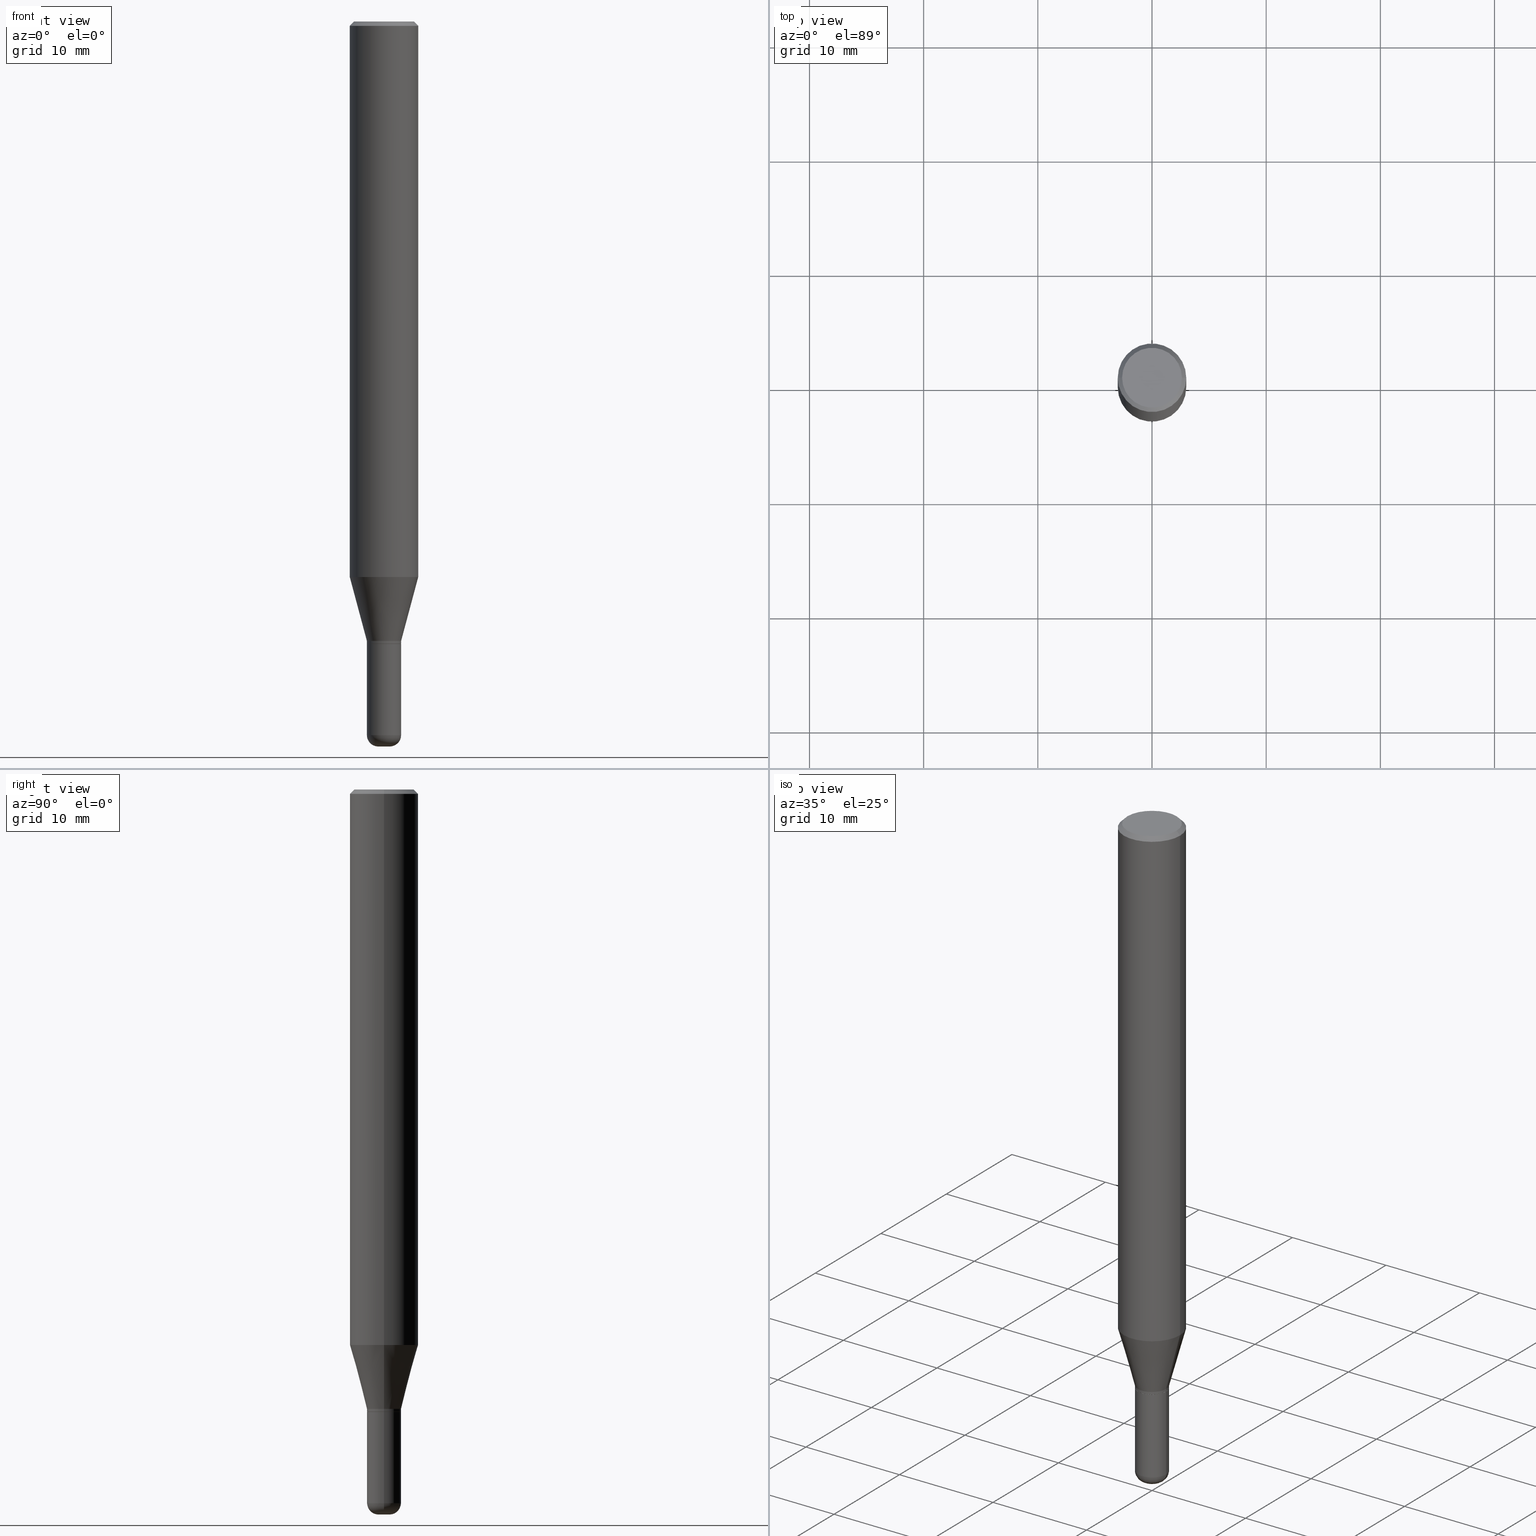
[diagram: canonical four-view strip — front | top / right | iso, engineering-drawing reading convention]
A machine part, canonical four-view strip (front | top / right | iso — engineering-drawing reading convention). The complete STEP part file that produces these views, byte-faithful:
ISO-10303-21;
HEADER;
FILE_DESCRIPTION (( 'STEP AP203' ),
    '1' );
FILE_NAME ('05365.STEP',
    '2024-02-29T19:38:31',
    ( '' ),
    ( '' ),
    'SwSTEP 2.0',
    'SolidWorks 2023',
    '' );
FILE_SCHEMA (( 'CONFIG_CONTROL_DESIGN' ));
ENDSEC;

DATA;
#1 = APPROVAL_STATUS ( 'not_yet_approved' ) ;
#2 = EDGE_LOOP ( 'NONE', ( #488, #219 ) ) ;
#3 = ADVANCED_FACE ( 'NONE', ( #178 ), #68, .F. ) ;
#4 = DIRECTION ( 'NONE',  ( 1.000000000000000000, -6.982962677686280910E-15, 0.000000000000000000 ) ) ;
#5 = AXIS2_PLACEMENT_3D ( 'NONE', #480, #48, #4 ) ;
#6 = ORIENTED_EDGE ( 'NONE', *, *, #490, .T. ) ;
#7 = COORDINATED_UNIVERSAL_TIME_OFFSET ( 5, 0, .BEHIND. ) ;
#8 = DATE_TIME_ROLE ( 'creation_date' ) ;
#9 = DIRECTION ( 'NONE',  ( 1.000000000000000000, -6.982962677686265922E-15, 4.876176775795935232E-29 ) ) ;
#10 = APPROVAL_DATE_TIME ( #320, #200 ) ;
#11 = AXIS2_PLACEMENT_3D ( 'NONE', #71, #336, #231 ) ;
#12 = DIRECTION ( 'NONE',  ( -2.445468806185136597E-29, 3.491481338843145583E-15, 1.000000000000000000 ) ) ;
#13 = CARTESIAN_POINT ( 'NONE',  ( 0.1180999999999999966, -8.246878922347480654E-16, 5.758764772215000440E-30 ) ) ;
#14 = DIRECTION ( 'NONE',  ( -2.438088387897960049E-29, 3.491481338843145188E-15, 1.000000000000000000 ) ) ;
#15 = ORIENTED_EDGE ( 'NONE', *, *, #168, .F. ) ;
#16 = EDGE_CURVE ( 'NONE', #373, #432, #75, .T. ) ;
#17 = EDGE_CURVE ( 'NONE', #500, #373, #124, .T. ) ;
#18 = DIRECTION ( 'NONE',  ( -2.445468806185136597E-29, 3.491481338843145583E-15, 1.000000000000000000 ) ) ;
#19 = CARTESIAN_POINT ( 'NONE',  ( -0.05905000000000002608, -7.037181209900967462E-15, -2.135699999999999932 ) ) ;
#20 = DIRECTION ( 'NONE',  ( 1.000000000000000000, -6.982962677686280910E-15, 4.883557194083117946E-29 ) ) ;
#21 = EDGE_LOOP ( 'NONE', ( #316, #133, #33, #72 ) ) ;
#22 = DIRECTION ( 'NONE',  ( -1.000000000000000000, 6.982962677686266711E-15, 0.000000000000000000 ) ) ;
#23 = AXIS2_PLACEMENT_3D ( 'NONE', #201, #38, #84 ) ;
#24 = CIRCLE ( 'NONE', #5, 0.05905000000000006771 ) ;
#25 = CARTESIAN_POINT ( 'NONE',  ( 0.05905000000000003302, -4.123439461173742792E-16, 2.879382386107501972E-30 ) ) ;
#26 = CC_DESIGN_PERSON_AND_ORGANIZATION_ASSIGNMENT ( #88, #43, ( #60 ) ) ;
#27 = EDGE_LOOP ( 'NONE', ( #290, #112, #469, #415 ) ) ;
#28 = DIRECTION ( 'NONE',  ( 2.438088387897960049E-29, -3.491481338843145188E-15, -1.000000000000000000 ) ) ;
#29 = ORIENTED_EDGE ( 'NONE', *, *, #422, .F. ) ;
#30 = DIRECTION ( 'NONE',  ( 1.000000000000000000, -6.982962677686266711E-15, 0.000000000000000000 ) ) ;
#31 = DIRECTION ( 'NONE',  ( -2.445468806185136597E-29, 3.491481338843145583E-15, 1.000000000000000000 ) ) ;
#32 = AXIS2_PLACEMENT_3D ( 'NONE', #413, #95, #101 ) ;
#33 = ORIENTED_EDGE ( 'NONE', *, *, #192, .T. ) ;
#34 = FACE_OUTER_BOUND ( 'NONE', #142, .T. ) ;
#35 = CARTESIAN_POINT ( 'NONE',  ( 0.1180999999999999966, -8.625970336194649143E-16, -0.01499999999999995781 ) ) ;
#36 = ADVANCED_FACE ( 'NONE', ( #478 ), #50, .T. ) ;
#37 = FACE_OUTER_BOUND ( 'NONE', #70, .T. ) ;
#38 = DIRECTION ( 'NONE',  ( -2.438088387897960049E-29, 3.491481338843145188E-15, 1.000000000000000000 ) ) ;
#39 = DIRECTION ( 'NONE',  ( -1.000000000000000000, 6.982962677686266711E-15, 0.000000000000000000 ) ) ;
#40 = APPROVAL_DATE_TIME ( #356, #351 ) ;
#41 = CARTESIAN_POINT ( 'NONE',  ( -0.05905000000000003302, 4.195754854663393944E-16, -2.904631170795523644E-30 ) ) ;
#42 = AXIS2_PLACEMENT_3D ( 'NONE', #173, #452, #284 ) ;
#43 = PERSON_AND_ORGANIZATION_ROLE ( 'design_owner' ) ;
#44 = ADVANCED_FACE ( 'NONE', ( #175 ), #207, .F. ) ;
#45 = VERTEX_POINT ( 'NONE', #384 ) ;
#46 = PERSON_AND_ORGANIZATION ( #394, #476 ) ;
#47 = ORIENTED_EDGE ( 'NONE', *, *, #234, .T. ) ;
#48 = DIRECTION ( 'NONE',  ( -2.445468806185136597E-29, 3.491481338843145583E-15, 1.000000000000000000 ) ) ;
#49 = PLANE ( 'NONE',  #226 ) ;
#50 = CYLINDRICAL_SURFACE ( 'NONE', #105, 0.1180999999999999966 ) ;
#51 = VECTOR ( 'NONE', #183, 39.37007874015748854 ) ;
#52 = DIRECTION ( 'NONE',  ( 1.000000000000000000, -6.982962677686266711E-15, 4.876176775795936353E-29 ) ) ;
#53 = CYLINDRICAL_SURFACE ( 'NONE', #332, 0.05905000000000003302 ) ;
#54 = DIRECTION ( 'NONE',  ( 1.000000000000000000, -6.982962677686243834E-15, 0.000000000000000000 ) ) ;
#55 = ORIENTED_EDGE ( 'NONE', *, *, #343, .T. ) ;
#56 = CC_DESIGN_PERSON_AND_ORGANIZATION_ASSIGNMENT ( #274, #126, ( #427 ) ) ;
#57 = DIRECTION ( 'NONE',  ( 1.000000000000000000, -6.982962677686258822E-15, 0.000000000000000000 ) ) ;
#58 = DIRECTION ( 'NONE',  ( -1.000000000000000000, 6.982962677686265922E-15, -4.876176775795935793E-29 ) ) ;
#59 = ORIENTED_EDGE ( 'NONE', *, *, #395, .T. ) ;
#60 = PRODUCT ( '05365', '05365', '', ( #120 ) ) ;
#61 = FACE_OUTER_BOUND ( 'NONE', #364, .T. ) ;
#62 = DIRECTION ( 'NONE',  ( 1.000000000000000000, -6.982962677686265922E-15, 4.876176775795935793E-29 ) ) ;
#63 = VERTEX_POINT ( 'NONE', #163 ) ;
#64 = EDGE_CURVE ( 'NONE', #412, #411, #65, .T. ) ;
#65 = CIRCLE ( 'NONE', #156, 0.05904999999999999832 ) ;
#66 = DIRECTION ( 'NONE',  ( 1.000000000000000000, -6.982962677686280910E-15, 0.000000000000000000 ) ) ;
#67 = CONICAL_SURFACE ( 'NONE', #138, 0.05855000000000004645, 0.7853981633978239785 ) ;
#68 = PLANE ( 'NONE',  #331 ) ;
#69 = CC_DESIGN_APPROVAL ( #200, ( #398 ) ) ;
#70 = EDGE_LOOP ( 'NONE', ( #305, #251, #258, #505 ) ) ;
#71 = CARTESIAN_POINT ( 'NONE',  ( 0.000000000000000000, 0.000000000000000000, 0.000000000000000000 ) ) ;
#72 = ORIENTED_EDGE ( 'NONE', *, *, #118, .F. ) ;
#73 = CARTESIAN_POINT ( 'NONE',  ( 0.000000000000000000, 0.000000000000000000, 0.000000000000000000 ) ) ;
#74 = CARTESIAN_POINT ( 'NONE',  ( 6.113672015462842613E-29, -8.728703347107864943E-15, -2.500000000000000000 ) ) ;
#75 = CIRCLE ( 'NONE', #114, 0.1180999999999999966 ) ;
#76 = CONICAL_SURFACE ( 'NONE', #347, 0.05855000000000004645, 0.7853981633978239785 ) ;
#77 = ADVANCED_FACE ( 'NONE', ( #376 ), #442, .T. ) ;
#78 = DIRECTION ( 'NONE',  ( -2.445468806185136597E-29, 3.491481338843145583E-15, 1.000000000000000000 ) ) ;
#79 = CARTESIAN_POINT ( 'NONE',  ( 5.247242417431447608E-29, -7.491671508755737816E-15, -2.145700000000000163 ) ) ;
#80 = CARTESIAN_POINT ( 'NONE',  ( 0.01965000000000001815, -8.865918563724400645E-15, -2.500000000000000000 ) ) ;
#81 =( NAMED_UNIT ( * ) SI_UNIT ( $, .STERADIAN. ) SOLID_ANGLE_UNIT ( ) );
#82 = CC_DESIGN_PERSON_AND_ORGANIZATION_ASSIGNMENT ( #46, #479, ( #446 ) ) ;
#83 = PERSON_AND_ORGANIZATION_ROLE ( 'classification_officer' ) ;
#84 = DIRECTION ( 'NONE',  ( 1.000000000000000000, -6.982962677686265922E-15, 4.876176775795935793E-29 ) ) ;
#85 = AXIS2_PLACEMENT_3D ( 'NONE', #140, #368, #187 ) ;
#86 = AXIS2_PLACEMENT_3D ( 'NONE', #465, #78, #199 ) ;
#87 = CALENDAR_DATE ( 2024, 29, 2 ) ;
#88 = PERSON_AND_ORGANIZATION ( #394, #476 ) ;
#89 = AXIS2_PLACEMENT_3D ( 'NONE', #461, #429, #420 ) ;
#90 = FACE_OUTER_BOUND ( 'NONE', #225, .T. ) ;
#91 = ADVANCED_FACE ( 'NONE', ( #462 ), #49, .F. ) ;
#92 = LINE ( 'NONE', #322, #51 ) ;
#93 = CARTESIAN_POINT ( 'NONE',  ( 4.123439461174264426E-16, 0.05904999999999250432, -2.145700000000000163 ) ) ;
#94 = EDGE_LOOP ( 'NONE', ( #179, #29 ) ) ;
#95 = DIRECTION ( 'NONE',  ( -2.445468806185136597E-29, 3.491481338843145583E-15, 1.000000000000000000 ) ) ;
#96 = AXIS2_PLACEMENT_3D ( 'NONE', #116, #233, #381 ) ;
#97 = CARTESIAN_POINT ( 'NONE',  ( 5.247242417431447608E-29, -7.491671508755737816E-15, -2.145700000000000163 ) ) ;
#98 = EDGE_LOOP ( 'NONE', ( #285, #496, #309, #367 ) ) ;
#99 = VERTEX_POINT ( 'NONE', #340 ) ;
#100 = SHAPE_DEFINITION_REPRESENTATION ( #228, #437 ) ;
#101 = DIRECTION ( 'NONE',  ( 1.000000000000000000, -6.982962677686269866E-15, 0.000000000000000000 ) ) ;
#102 = DIRECTION ( 'NONE',  ( 1.000000000000000000, -6.982962677686258822E-15, 0.000000000000000000 ) ) ;
#103 = EDGE_LOOP ( 'NONE', ( #299, #294 ) ) ;
#104 = DIRECTION ( 'NONE',  ( 1.000000000000000000, -6.982962677686265133E-15, 0.000000000000000000 ) ) ;
#105 = AXIS2_PLACEMENT_3D ( 'NONE', #129, #445, #52 ) ;
#106 = DIRECTION ( 'NONE',  ( -2.445468806185136597E-29, 3.491481338843145583E-15, 1.000000000000000000 ) ) ;
#107 = ORIENTED_EDGE ( 'NONE', *, *, #111, .F. ) ;
#108 = CARTESIAN_POINT ( 'NONE',  ( -0.05905000000000002608, -6.442671327891926197E-15, -2.135699999999999932 ) ) ;
#109 = CARTESIAN_POINT ( 'NONE',  ( -0.1031000000000000111, 7.461295621107775452E-16, -5.126375781645864005E-30 ) ) ;
#110 = CARTESIAN_POINT ( 'NONE',  ( 6.017320544499146897E-29, -8.591138982357444151E-15, -2.460599999999999898 ) ) ;
#111 = EDGE_CURVE ( 'NONE', #172, #432, #464, .T. ) ;
#112 = ORIENTED_EDGE ( 'NONE', *, *, #118, .T. ) ;
#113 = DIRECTION ( 'NONE',  ( -2.445468806185136597E-29, 3.491481338843145583E-15, 1.000000000000000000 ) ) ;
#114 = AXIS2_PLACEMENT_3D ( 'NONE', #269, #137, #161 ) ;
#115 = CIRCLE ( 'NONE', #264, 0.1031000000000000111 ) ;
#116 = CARTESIAN_POINT ( 'NONE',  ( 5.247242417431447608E-29, -7.491671508755737816E-15, -2.145700000000000163 ) ) ;
#117 = EDGE_CURVE ( 'NONE', #147, #417, #280, .T. ) ;
#118 = EDGE_CURVE ( 'NONE', #146, #261, #203, .T. ) ;
#119 = DIRECTION ( 'NONE',  ( 1.000000000000000000, -6.982962677686269866E-15, 0.000000000000000000 ) ) ;
#120 = MECHANICAL_CONTEXT ( 'NONE', #434, 'mechanical' ) ;
#121 = PERSON_AND_ORGANIZATION ( #394, #476 ) ;
#122 = DIRECTION ( 'NONE',  ( -2.445468806185136597E-29, 3.491481338843145583E-15, 1.000000000000000000 ) ) ;
#123 = CIRCLE ( 'NONE', #517, 0.05905000000000002608 ) ;
#124 = LINE ( 'NONE', #278, #396 ) ;
#125 = ORIENTED_EDGE ( 'NONE', *, *, #17, .T. ) ;
#126 = PERSON_AND_ORGANIZATION_ROLE ( 'creator' ) ;
#127 = LENGTH_MEASURE_WITH_UNIT ( LENGTH_MEASURE( 0.02539999999999999897 ), #512 );
#128 = ADVANCED_FACE ( 'NONE', ( #436 ), #397, .T. ) ;
#129 = CARTESIAN_POINT ( 'NONE',  ( 0.000000000000000000, 0.000000000000000000, 0.000000000000000000 ) ) ;
#130 = TOROIDAL_SURFACE ( 'NONE', #418, 0.01965000000000000774, 0.03940000000000005997 ) ;
#131 = AXIS2_PLACEMENT_3D ( 'NONE', #271, #304, #30 ) ;
#132 = LINE ( 'NONE', #260, #426 ) ;
#133 = ORIENTED_EDGE ( 'NONE', *, *, #191, .T. ) ;
#134 = ADVANCED_FACE ( 'NONE', ( #61 ), #361, .T. ) ;
#135 = DIRECTION ( 'NONE',  ( -2.445468806185136597E-29, 3.491481338843145583E-15, 1.000000000000000000 ) ) ;
#136 = CARTESIAN_POINT ( 'NONE',  ( 4.683861182530489821E-29, -6.687312416815562340E-15, -1.915322399813057963 ) ) ;
#137 = DIRECTION ( 'NONE',  ( -2.445468806185136597E-29, 3.491481338843145583E-15, 1.000000000000000000 ) ) ;
#138 = AXIS2_PLACEMENT_3D ( 'NONE', #220, #359, #57 ) ;
#139 =( GEOMETRIC_REPRESENTATION_CONTEXT ( 3 ) GLOBAL_UNCERTAINTY_ASSIGNED_CONTEXT ( ( #144 ) ) GLOBAL_UNIT_ASSIGNED_CONTEXT ( ( #435, #171, #81 ) ) REPRESENTATION_CONTEXT ( 'NONE', 'WORKASPACE' ) );
#140 = CARTESIAN_POINT ( 'NONE',  ( 5.246019683028355928E-29, -7.489925768086317101E-15, -2.145200000000000440 ) ) ;
#141 = LINE ( 'NONE', #151, #185 ) ;
#142 = EDGE_LOOP ( 'NONE', ( #382, #409, #253, #450 ) ) ;
#143 = LINE ( 'NONE', #25, #311 ) ;
#144 = UNCERTAINTY_MEASURE_WITH_UNIT (LENGTH_MEASURE( 1.000000000000000082E-05 ), #435, 'distance_accuracy_value', 'NONE');
#145 = CC_DESIGN_PERSON_AND_ORGANIZATION_ASSIGNMENT ( #433, #83, ( #398 ) ) ;
#146 = VERTEX_POINT ( 'NONE', #513 ) ;
#147 = VERTEX_POINT ( 'NONE', #314 ) ;
#148 = CYLINDRICAL_SURFACE ( 'NONE', #355, 0.1180999999999999966 ) ;
#149 = CIRCLE ( 'NONE', #89, 0.01965000000000001815 ) ;
#150 = EDGE_CURVE ( 'NONE', #63, #417, #468, .T. ) ;
#151 = CARTESIAN_POINT ( 'NONE',  ( -0.05855000000000004645, -7.075648736968199221E-15, -2.145700000000000163 ) ) ;
#152 = ORIENTED_EDGE ( 'NONE', *, *, #262, .T. ) ;
#153 = CARTESIAN_POINT ( 'NONE',  ( 0.05905000000000005383, -7.902269714203691232E-15, -2.145200000000000440 ) ) ;
#154 = EDGE_LOOP ( 'NONE', ( #254, #59, #423, #369 ) ) ;
#155 = DIRECTION ( 'NONE',  ( 1.000000000000000000, -6.982962677686303787E-15, 0.000000000000000000 ) ) ;
#156 = AXIS2_PLACEMENT_3D ( 'NONE', #79, #122, #421 ) ;
#157 = AXIS2_PLACEMENT_3D ( 'NONE', #387, #385, #39 ) ;
#158 = VERTEX_POINT ( 'NONE', #80 ) ;
#159 = CARTESIAN_POINT ( 'NONE',  ( 4.683861182530489821E-29, -6.687312416815562340E-15, -1.915322399813057963 ) ) ;
#160 = PERSON_AND_ORGANIZATION ( #394, #476 ) ;
#161 = DIRECTION ( 'NONE',  ( 1.000000000000000000, -6.982962677686266711E-15, 0.000000000000000000 ) ) ;
#162 = ORIENTED_EDGE ( 'NONE', *, *, #490, .F. ) ;
#163 = CARTESIAN_POINT ( 'NONE',  ( -0.05905000000000005383, -7.070350282619977608E-15, -2.145200000000000440 ) ) ;
#164 = APPLICATION_PROTOCOL_DEFINITION ( 'international standard', 'config_control_design', 1994, #434 ) ;
#165 = LINE ( 'NONE', #13, #229 ) ;
#166 = ADVANCED_FACE ( 'NONE', ( #350 ), #130, .T. ) ;
#167 = AXIS2_PLACEMENT_3D ( 'NONE', #177, #328, #54 ) ;
#168 = EDGE_CURVE ( 'NONE', #268, #45, #24, .T. ) ;
#169 = CALENDAR_DATE ( 2024, 29, 2 ) ;
#170 = ORIENTED_EDGE ( 'NONE', *, *, #288, .F. ) ;
#171 =( NAMED_UNIT ( * ) PLANE_ANGLE_UNIT ( ) SI_UNIT ( $, .RADIAN. ) );
#172 = VERTEX_POINT ( 'NONE', #211 ) ;
#173 = CARTESIAN_POINT ( 'NONE',  ( 0.000000000000000000, 0.000000000000000000, 0.000000000000000000 ) ) ;
#174 = EDGE_CURVE ( 'NONE', #261, #432, #165, .T. ) ;
#175 = FACE_OUTER_BOUND ( 'NONE', #94, .T. ) ;
#176 = CIRCLE ( 'NONE', #42, 0.1031000000000000111 ) ;
#177 = CARTESIAN_POINT ( 'NONE',  ( 0.01965000000000000774, -8.728354198973978275E-15, -2.460599999999999898 ) ) ;
#178 = FACE_OUTER_BOUND ( 'NONE', #103, .T. ) ;
#179 = ORIENTED_EDGE ( 'NONE', *, *, #345, .F. ) ;
#180 = CARTESIAN_POINT ( 'NONE',  ( 0.000000000000000000, 0.000000000000000000, 0.000000000000000000 ) ) ;
#181 = EDGE_LOOP ( 'NONE', ( #296, #291, #182, #405 ) ) ;
#182 = ORIENTED_EDGE ( 'NONE', *, *, #288, .T. ) ;
#183 = DIRECTION ( 'NONE',  ( 0.7071067811868130271, -2.468850131085038979E-15, 0.7071067811862817853 ) ) ;
#184 = ORIENTED_EDGE ( 'NONE', *, *, #221, .F. ) ;
#185 = VECTOR ( 'NONE', #273, 39.37007874015748854 ) ;
#186 = AXIS2_PLACEMENT_3D ( 'NONE', #348, #244, #279 ) ;
#187 = DIRECTION ( 'NONE',  ( 1.000000000000000000, -6.982962677686266711E-15, 0.000000000000000000 ) ) ;
#188 = LINE ( 'NONE', #342, #241 ) ;
#189 = ORIENTED_EDGE ( 'NONE', *, *, #298, .F. ) ;
#190 = LINE ( 'NONE', #337, #502 ) ;
#191 = EDGE_CURVE ( 'NONE', #417, #147, #123, .T. ) ;
#192 = EDGE_CURVE ( 'NONE', #147, #261, #286, .T. ) ;
#193 = DIRECTION ( 'NONE',  ( -2.445468806185136877E-29, 3.491481338843145188E-15, 1.000000000000000000 ) ) ;
#194 = CIRCLE ( 'NONE', #167, 0.03940000000000005997 ) ;
#195 = CIRCLE ( 'NONE', #131, 0.05905000000000005383 ) ;
#196 = ORIENTED_EDGE ( 'NONE', *, *, #191, .F. ) ;
#197 = CYLINDRICAL_SURFACE ( 'NONE', #86, 0.05905000000000003302 ) ;
#198 = DIRECTION ( 'NONE',  ( 0.7071067811865483499, -7.319954787623257623E-15, -0.7071067811865466846 ) ) ;
#199 = DIRECTION ( 'NONE',  ( 1.000000000000000000, -6.982962677686266711E-15, 4.876176775795936353E-29 ) ) ;
#200 = APPROVAL ( #353, 'UNSPECIFIED' ) ;
#201 = CARTESIAN_POINT ( 'NONE',  ( 6.199188644380781470E-29, -8.606238667193129794E-15, -2.500000000000000000 ) ) ;
#202 = DIRECTION ( 'NONE',  ( -2.445468806185136877E-29, 3.491481338843145188E-15, 1.000000000000000000 ) ) ;
#203 = CIRCLE ( 'NONE', #255, 0.1180999999999999966 ) ;
#204 = AXIS2_PLACEMENT_3D ( 'NONE', #453, #491, #66 ) ;
#205 = APPROVAL_PERSON_ORGANIZATION ( #392, #351, #318 ) ;
#206 = DATE_TIME_ROLE ( 'classification_date' ) ;
#207 = PLANE ( 'NONE',  #23 ) ;
#208 = COORDINATED_UNIVERSAL_TIME_OFFSET ( 5, 0, .BEHIND. ) ;
#209 = ADVANCED_FACE ( 'NONE', ( #484 ), #67, .T. ) ;
#210 = DATE_AND_TIME ( #246, #483 ) ;
#211 = CARTESIAN_POINT ( 'NONE',  ( 0.1031000000000000111, -7.849571885948548761E-16, 5.261941714946591942E-30 ) ) ;
#212 = AXIS2_PLACEMENT_3D ( 'NONE', #97, #135, #334 ) ;
#213 = ORIENTED_EDGE ( 'NONE', *, *, #326, .F. ) ;
#214 = APPROVAL_STATUS ( 'not_yet_approved' ) ;
#215 = EDGE_CURVE ( 'NONE', #500, #172, #176, .T. ) ;
#216 = CARTESIAN_POINT ( 'NONE',  ( 0.000000000000000000, 0.000000000000000000, 0.000000000000000000 ) ) ;
#217 = CIRCLE ( 'NONE', #212, 0.05855000000000004645 ) ;
#218 = FACE_OUTER_BOUND ( 'NONE', #344, .T. ) ;
#219 = ORIENTED_EDGE ( 'NONE', *, *, #459, .T. ) ;
#220 = CARTESIAN_POINT ( 'NONE',  ( 5.247242417431447608E-29, -7.491671508755737816E-15, -2.145700000000000163 ) ) ;
#221 = EDGE_CURVE ( 'NONE', #335, #99, #379, .T. ) ;
#222 = ORIENTED_EDGE ( 'NONE', *, *, #215, .F. ) ;
#223 = CARTESIAN_POINT ( 'NONE',  ( -0.01965000000000001815, -8.380322598211054362E-15, -2.500000000000000000 ) ) ;
#224 = EDGE_LOOP ( 'NONE', ( #330, #6, #338, #196 ) ) ;
#225 = EDGE_LOOP ( 'NONE', ( #213, #487, #152, #162 ) ) ;
#226 = AXIS2_PLACEMENT_3D ( 'NONE', #93, #403, #58 ) ;
#227 = AXIS2_PLACEMENT_3D ( 'NONE', #110, #509, #248 ) ;
#228 = PRODUCT_DEFINITION_SHAPE ( 'NONE', 'NONE',  #446 ) ;
#229 = VECTOR ( 'NONE', #399, 39.37007874015748143 ) ;
#230 = LOCAL_TIME ( 14, 38, 31.00000000000000000, #7 ) ;
#231 = DIRECTION ( 'NONE',  ( 1.000000000000000000, -6.982962677686266711E-15, 4.876176775795936353E-29 ) ) ;
#232 = ORIENTED_EDGE ( 'NONE', *, *, #174, .F. ) ;
#233 = DIRECTION ( 'NONE',  ( -2.445468806185136597E-29, 3.491481338843145583E-15, 1.000000000000000000 ) ) ;
#234 = EDGE_CURVE ( 'NONE', #146, #373, #132, .T. ) ;
#235 = DIRECTION ( 'NONE',  ( -2.445468806185136597E-29, 3.491481338843145583E-15, 1.000000000000000000 ) ) ;
#236 = ORIENTED_EDGE ( 'NONE', *, *, #259, .F. ) ;
#237 = DIRECTION ( 'NONE',  ( 1.000000000000000000, -6.982962677686266711E-15, 4.876176775795936353E-29 ) ) ;
#238 = CIRCLE ( 'NONE', #204, 0.05905000000000006771 ) ;
#239 = EDGE_LOOP ( 'NONE', ( #388, #341, #15, #170 ) ) ;
#240 = COORDINATED_UNIVERSAL_TIME_OFFSET ( 5, 0, .BEHIND. ) ;
#241 = VECTOR ( 'NONE', #424, 39.37007874015748143 ) ;
#242 = VERTEX_POINT ( 'NONE', #223 ) ;
#243 = EDGE_CURVE ( 'NONE', #45, #268, #238, .T. ) ;
#244 = DIRECTION ( 'NONE',  ( 0.000000000000000000, 0.000000000000000000, 1.000000000000000000 ) ) ;
#245 = EDGE_CURVE ( 'NONE', #417, #146, #263, .T. ) ;
#246 = CALENDAR_DATE ( 2024, 29, 2 ) ;
#247 = APPLICATION_PROTOCOL_DEFINITION ( 'international standard', 'config_control_design', 1994, #458 ) ;
#248 = DIRECTION ( 'NONE',  ( 1.000000000000000000, -6.982962677686280910E-15, 4.883557194083117946E-29 ) ) ;
#249 = AXIS2_PLACEMENT_3D ( 'NONE', #327, #408, #22 ) ;
#250 = DIRECTION ( 'NONE',  ( 1.000000000000000000, -6.982962677686258822E-15, 0.000000000000000000 ) ) ;
#251 = ORIENTED_EDGE ( 'NONE', *, *, #245, .T. ) ;
#252 = CARTESIAN_POINT ( 'NONE',  ( 5.247242417431447608E-29, -7.491671508755737816E-15, -2.145700000000000163 ) ) ;
#253 = ORIENTED_EDGE ( 'NONE', *, *, #117, .F. ) ;
#254 = ORIENTED_EDGE ( 'NONE', *, *, #168, .T. ) ;
#255 = AXIS2_PLACEMENT_3D ( 'NONE', #159, #312, #308 ) ;
#256 = LOCAL_TIME ( 14, 38, 31.00000000000000000, #240 ) ;
#257 = FACE_OUTER_BOUND ( 'NONE', #430, .T. ) ;
#258 = ORIENTED_EDGE ( 'NONE', *, *, #276, .F. ) ;
#259 = EDGE_CURVE ( 'NONE', #172, #500, #115, .T. ) ;
#260 = CARTESIAN_POINT ( 'NONE',  ( -0.1180999999999999966, 8.391509709326782957E-16, -5.809262341591043784E-30 ) ) ;
#261 = VERTEX_POINT ( 'NONE', #448 ) ;
#262 = EDGE_CURVE ( 'NONE', #335, #455, #92, .T. ) ;
#263 = LINE ( 'NONE', #19, #323 ) ;
#264 = AXIS2_PLACEMENT_3D ( 'NONE', #180, #357, #9 ) ;
#265 = ADVANCED_FACE ( 'NONE', ( #90 ), #76, .T. ) ;
#266 = LOCAL_TIME ( 14, 38, 31.00000000000000000, #208 ) ;
#267 = CARTESIAN_POINT ( 'NONE',  ( 0.000000000000000000, 0.000000000000000000, 0.000000000000000000 ) ) ;
#268 = VERTEX_POINT ( 'NONE', #325 ) ;
#269 = CARTESIAN_POINT ( 'NONE',  ( 3.668203209277694140E-31, -5.237222008264703607E-17, -0.01499999999999995781 ) ) ;
#270 = CARTESIAN_POINT ( 'NONE',  ( 3.668203209277694140E-31, -5.237222008264703607E-17, -0.01499999999999995781 ) ) ;
#271 = CARTESIAN_POINT ( 'NONE',  ( 5.246019683028355928E-29, -7.489925768086317101E-15, -2.145200000000000440 ) ) ;
#272 = FACE_OUTER_BOUND ( 'NONE', #154, .T. ) ;
#273 = DIRECTION ( 'NONE',  ( -0.7071067811868130271, 7.493145998871311837E-15, 0.7071067811862817853 ) ) ;
#274 = PERSON_AND_ORGANIZATION ( #394, #476 ) ;
#275 = ORIENTED_EDGE ( 'NONE', *, *, #326, .T. ) ;
#276 = EDGE_CURVE ( 'NONE', #261, #146, #406, .T. ) ;
#277 = PERSON_AND_ORGANIZATION_ROLE ( 'design_supplier' ) ;
#278 = CARTESIAN_POINT ( 'NONE',  ( -0.1180999999999999966, 7.723156721521010848E-16, -0.01499999999999995781 ) ) ;
#279 = DIRECTION ( 'NONE',  ( 1.000000000000000000, 0.000000000000000000, 0.000000000000000000 ) ) ;
#280 = CIRCLE ( 'NONE', #416, 0.05905000000000002608 ) ;
#281 = VECTOR ( 'NONE', #202, 39.37007874015748143 ) ;
#282 = AXIS2_PLACEMENT_3D ( 'NONE', #447, #414, #102 ) ;
#283 = ADVANCED_FACE ( 'NONE', ( #402 ), #53, .T. ) ;
#284 = DIRECTION ( 'NONE',  ( 1.000000000000000000, -6.982962677686265922E-15, 4.876176775795935232E-29 ) ) ;
#285 = ORIENTED_EDGE ( 'NONE', *, *, #395, .F. ) ;
#286 = LINE ( 'NONE', #293, #482 ) ;
#287 = PRODUCT_RELATED_PRODUCT_CATEGORY ( 'detail', '', ( #60 ) ) ;
#288 = EDGE_CURVE ( 'NONE', #158, #268, #194, .T. ) ;
#289 = DIRECTION ( 'NONE',  ( 0.2588190451025207395, 1.565188264969626109E-15, 0.9659258262890682012 ) ) ;
#290 = ORIENTED_EDGE ( 'NONE', *, *, #234, .F. ) ;
#291 = ORIENTED_EDGE ( 'NONE', *, *, #422, .T. ) ;
#292 = APPROVAL_PERSON_ORGANIZATION ( #393, #200, #477 ) ;
#293 = CARTESIAN_POINT ( 'NONE',  ( 0.05905000000000002608, -7.869100641484681875E-15, -2.135699999999999932 ) ) ;
#294 = ORIENTED_EDGE ( 'NONE', *, *, #259, .T. ) ;
#295 = DIRECTION ( 'NONE',  ( -2.445468806185136597E-29, 3.491481338843145583E-15, 1.000000000000000000 ) ) ;
#296 = ORIENTED_EDGE ( 'NONE', *, *, #400, .F. ) ;
#297 = CARTESIAN_POINT ( 'NONE',  ( 7.199434520694541042E-16, 0.1031000000000000111, -3.599717260347282847E-16 ) ) ;
#298 = EDGE_CURVE ( 'NONE', #99, #335, #217, .T. ) ;
#299 = ORIENTED_EDGE ( 'NONE', *, *, #215, .T. ) ;
#300 = DIRECTION ( 'NONE',  ( -1.000000000000000000, 7.105427357601014480E-15, 0.000000000000000000 ) ) ;
#301 = DIRECTION ( 'NONE',  ( -1.000000000000000000, 6.982962677686265922E-15, -4.876176775795935793E-29 ) ) ;
#302 = AXIS2_PLACEMENT_3D ( 'NONE', #428, #310, #300 ) ;
#303 = CARTESIAN_POINT ( 'NONE',  ( -0.05904999999999999832, -7.621829760090250701E-15, -2.145700000000000163 ) ) ;
#304 = DIRECTION ( 'NONE',  ( -2.445468806185136597E-29, 3.491481338843145583E-15, 1.000000000000000000 ) ) ;
#305 = ORIENTED_EDGE ( 'NONE', *, *, #117, .T. ) ;
#306 = CARTESIAN_POINT ( 'NONE',  ( 5.222787729369597184E-29, -7.456756695367306166E-15, -2.135699999999999932 ) ) ;
#307 = ADVANCED_FACE ( 'NONE', ( #218 ), #410, .F. ) ;
#308 = DIRECTION ( 'NONE',  ( 1.000000000000000000, -6.982962677686265133E-15, 0.000000000000000000 ) ) ;
#309 = ORIENTED_EDGE ( 'NONE', *, *, #386, .T. ) ;
#310 = DIRECTION ( 'NONE',  ( 7.105427357601001859E-15, 1.000000000000000000, -3.491481338843145583E-15 ) ) ;
#311 = VECTOR ( 'NONE', #193, 39.37007874015748143 ) ;
#312 = DIRECTION ( 'NONE',  ( -2.445468806185136597E-29, 3.491481338843145583E-15, 1.000000000000000000 ) ) ;
#313 = APPROVAL_ROLE ( '' ) ;
#314 = CARTESIAN_POINT ( 'NONE',  ( 0.05905000000000002608, -7.869100641484681875E-15, -2.135699999999999932 ) ) ;
#315 = EDGE_CURVE ( 'NONE', #455, #63, #516, .T. ) ;
#316 = ORIENTED_EDGE ( 'NONE', *, *, #245, .F. ) ;
#317 = CALENDAR_DATE ( 2024, 29, 2 ) ;
#318 = APPROVAL_ROLE ( '' ) ;
#319 = CLOSED_SHELL ( 'NONE', ( #166, #377, #91, #425, #77, #44 ) ) ;
#320 = DATE_AND_TIME ( #169, #230 ) ;
#321 = ADVANCED_FACE ( 'NONE', ( #257 ), #492, .T. ) ;
#322 = CARTESIAN_POINT ( 'NONE',  ( 0.05855000000000004645, -7.900523973534268940E-15, -2.145700000000000163 ) ) ;
#323 = VECTOR ( 'NONE', #486, 39.37007874015748854 ) ;
#324 = APPROVAL_PERSON_ORGANIZATION ( #160, #362, #313 ) ;
#325 = CARTESIAN_POINT ( 'NONE',  ( 0.05905000000000006771, -9.003482928474819860E-15, -2.460599999999999898 ) ) ;
#326 = EDGE_CURVE ( 'NONE', #99, #63, #141, .T. ) ;
#327 = CARTESIAN_POINT ( 'NONE',  ( 3.668203209277694140E-31, -5.237222008264703607E-17, -0.01499999999999995781 ) ) ;
#328 = DIRECTION ( 'NONE',  ( -6.982962677686266711E-15, -1.000000000000000000, 3.491481338843145583E-15 ) ) ;
#329 = ORIENTED_EDGE ( 'NONE', *, *, #276, .T. ) ;
#330 = ORIENTED_EDGE ( 'NONE', *, *, #150, .F. ) ;
#331 = AXIS2_PLACEMENT_3D ( 'NONE', #297, #28, #301 ) ;
#332 = AXIS2_PLACEMENT_3D ( 'NONE', #216, #12, #485 ) ;
#333 = EDGE_CURVE ( 'NONE', #455, #147, #190, .T. ) ;
#334 = DIRECTION ( 'NONE',  ( 1.000000000000000000, -6.982962677686258822E-15, 0.000000000000000000 ) ) ;
#335 = VERTEX_POINT ( 'NONE', #460 ) ;
#336 = DIRECTION ( 'NONE',  ( -2.445468806185136597E-29, 3.491481338843145583E-15, 1.000000000000000000 ) ) ;
#337 = CARTESIAN_POINT ( 'NONE',  ( 0.05905000000000003302, -4.123439461173742792E-16, 2.879382386107501972E-30 ) ) ;
#338 = ORIENTED_EDGE ( 'NONE', *, *, #333, .T. ) ;
#339 = AXIS2_PLACEMENT_3D ( 'NONE', #267, #113, #501 ) ;
#340 = CARTESIAN_POINT ( 'NONE',  ( -0.05855000000000004645, -7.072999509794088809E-15, -2.145700000000000163 ) ) ;
#341 = ORIENTED_EDGE ( 'NONE', *, *, #400, .T. ) ;
#342 = CARTESIAN_POINT ( 'NONE',  ( -0.05905000000000003302, 4.195754854663393944E-16, -2.904631170795523644E-30 ) ) ;
#343 = EDGE_CURVE ( 'NONE', #432, #373, #443, .T. ) ;
#344 = EDGE_LOOP ( 'NONE', ( #184, #189 ) ) ;
#345 = EDGE_CURVE ( 'NONE', #158, #242, #370, .T. ) ;
#346 = DIRECTION ( 'NONE',  ( -2.445468806185136877E-29, 3.491481338843145188E-15, 1.000000000000000000 ) ) ;
#347 = AXIS2_PLACEMENT_3D ( 'NONE', #252, #295, #250 ) ;
#348 = CARTESIAN_POINT ( 'NONE',  ( 0.000000000000000000, 0.000000000000000000, 0.000000000000000000 ) ) ;
#349 = LOCAL_TIME ( 14, 38, 31.00000000000000000, #475 ) ;
#350 = FACE_OUTER_BOUND ( 'NONE', #239, .T. ) ;
#351 = APPROVAL ( #214, 'UNSPECIFIED' ) ;
#352 = CALENDAR_DATE ( 2024, 29, 2 ) ;
#353 = APPROVAL_STATUS ( 'not_yet_approved' ) ;
#354 = AXIS2_PLACEMENT_3D ( 'NONE', #363, #14, #62 ) ;
#355 = AXIS2_PLACEMENT_3D ( 'NONE', #73, #235, #237 ) ;
#356 = DATE_AND_TIME ( #352, #266 ) ;
#357 = DIRECTION ( 'NONE',  ( -2.445468806185136597E-29, 3.491481338843145583E-15, 1.000000000000000000 ) ) ;
#358 = CC_DESIGN_DATE_AND_TIME_ASSIGNMENT ( #391, #206, ( #398 ) ) ;
#359 = DIRECTION ( 'NONE',  ( -2.445468806185136597E-29, 3.491481338843145583E-15, 1.000000000000000000 ) ) ;
#360 = MANIFOLD_SOLID_BREP ( 'Body-Move/Copy2[2]', #514 ) ;
#361 = CONICAL_SURFACE ( 'NONE', #157, 0.1180999999999999966, 0.7853981633974495002 ) ;
#362 = APPROVAL ( #1, 'UNSPECIFIED' ) ;
#363 = CARTESIAN_POINT ( 'NONE',  ( 5.247242417431447608E-29, -7.491671508755737816E-15, -2.145700000000000163 ) ) ;
#364 = EDGE_LOOP ( 'NONE', ( #107, #222, #125, #463 ) ) ;
#365 = CARTESIAN_POINT ( 'NONE',  ( 6.017320544499146897E-29, -8.591138982357444151E-15, -2.460599999999999898 ) ) ;
#366 = DIRECTION ( 'NONE',  ( -2.445468806185136597E-29, 3.491481338843145583E-15, 1.000000000000000000 ) ) ;
#367 = ORIENTED_EDGE ( 'NONE', *, *, #459, .F. ) ;
#368 = DIRECTION ( 'NONE',  ( -2.445468806185136597E-29, 3.491481338843145583E-15, 1.000000000000000000 ) ) ;
#369 = ORIENTED_EDGE ( 'NONE', *, *, #386, .F. ) ;
#370 = CIRCLE ( 'NONE', #390, 0.01965000000000001815 ) ;
#371 = DIRECTION ( 'NONE',  ( 1.000000000000000000, -6.982962677686266711E-15, 0.000000000000000000 ) ) ;
#372 = MANIFOLD_SOLID_BREP ( 'Body-Move/Copy2[1]', #319 ) ;
#373 = VERTEX_POINT ( 'NONE', #375 ) ;
#374 = DIRECTION ( 'NONE',  ( 1.000000000000000000, -6.982962677686269866E-15, 0.000000000000000000 ) ) ;
#375 = CARTESIAN_POINT ( 'NONE',  ( -0.1180999999999999966, -2.530691347516425921E-15, -0.01499999999999995781 ) ) ;
#376 = FACE_OUTER_BOUND ( 'NONE', #181, .T. ) ;
#377 = ADVANCED_FACE ( 'NONE', ( #272 ), #497, .T. ) ;
#378 = ORIENTED_EDGE ( 'NONE', *, *, #315, .F. ) ;
#379 = CIRCLE ( 'NONE', #282, 0.05855000000000004645 ) ;
#380 = CC_DESIGN_APPROVAL ( #362, ( #427 ) ) ;
#381 = DIRECTION ( 'NONE',  ( 1.000000000000000000, -6.982962677686273021E-15, 0.000000000000000000 ) ) ;
#382 = ORIENTED_EDGE ( 'NONE', *, *, #315, .T. ) ;
#383 = CYLINDRICAL_SURFACE ( 'NONE', #339, 0.05905000000000003302 ) ;
#384 = CARTESIAN_POINT ( 'NONE',  ( -0.05905000000000007465, -7.621829760090250701E-15, -2.460599999999999898 ) ) ;
#385 = DIRECTION ( 'NONE',  ( 2.445468806185136597E-29, -3.491481338843145583E-15, -1.000000000000000000 ) ) ;
#386 = EDGE_CURVE ( 'NONE', #268, #412, #143, .T. ) ;
#387 = CARTESIAN_POINT ( 'NONE',  ( 3.668203209277694140E-31, -5.237222008264703607E-17, -0.01499999999999995781 ) ) ;
#388 = ORIENTED_EDGE ( 'NONE', *, *, #345, .T. ) ;
#389 = VECTOR ( 'NONE', #198, 39.37007874015748143 ) ;
#390 = AXIS2_PLACEMENT_3D ( 'NONE', #74, #106, #155 ) ;
#391 = DATE_AND_TIME ( #87, #256 ) ;
#392 = PERSON_AND_ORGANIZATION ( #394, #476 ) ;
#393 = PERSON_AND_ORGANIZATION ( #394, #476 ) ;
#394 = PERSON ( 'UNSPECIFIED', 'UNSPECIFIED', 'UNSPECIFIED', ('UNSPECIFIED'), ('UNSPECIFIED'), ('UNSPECIFIED') ) ;
#395 = EDGE_CURVE ( 'NONE', #45, #411, #188, .T. ) ;
#396 = VECTOR ( 'NONE', #439, 39.37007874015748143 ) ;
#397 = CONICAL_SURFACE ( 'NONE', #32, 0.05905000000000002608, 0.2617993877991494633 ) ;
#398 = SECURITY_CLASSIFICATION ( '', '', #440 ) ;
#399 = DIRECTION ( 'NONE',  ( -2.445468806185136877E-29, 3.491481338843145188E-15, 1.000000000000000000 ) ) ;
#400 = EDGE_CURVE ( 'NONE', #242, #45, #473, .T. ) ;
#401 = CC_DESIGN_DATE_AND_TIME_ASSIGNMENT ( #210, #8, ( #446 ) ) ;
#402 = FACE_OUTER_BOUND ( 'NONE', #224, .T. ) ;
#403 = DIRECTION ( 'NONE',  ( 2.438088387897960049E-29, -3.491481338843145188E-15, -1.000000000000000000 ) ) ;
#404 = DIRECTION ( 'NONE',  ( -2.445468806185136877E-29, 3.491481338843145188E-15, 1.000000000000000000 ) ) ;
#405 = ORIENTED_EDGE ( 'NONE', *, *, #243, .F. ) ;
#406 = CIRCLE ( 'NONE', #457, 0.1180999999999999966 ) ;
#407 = CIRCLE ( 'NONE', #96, 0.05904999999999999832 ) ;
#408 = DIRECTION ( 'NONE',  ( 2.445468806185136597E-29, -3.491481338843145583E-15, -1.000000000000000000 ) ) ;
#409 = ORIENTED_EDGE ( 'NONE', *, *, #150, .T. ) ;
#410 = PLANE ( 'NONE',  #354 ) ;
#411 = VERTEX_POINT ( 'NONE', #303 ) ;
#412 = VERTEX_POINT ( 'NONE', #456 ) ;
#413 = CARTESIAN_POINT ( 'NONE',  ( 5.222787729369597184E-29, -7.456756695367306166E-15, -2.135699999999999932 ) ) ;
#414 = DIRECTION ( 'NONE',  ( -2.445468806185136597E-29, 3.491481338843145583E-15, 1.000000000000000000 ) ) ;
#415 = ORIENTED_EDGE ( 'NONE', *, *, #16, .F. ) ;
#416 = AXIS2_PLACEMENT_3D ( 'NONE', #511, #431, #119 ) ;
#417 = VERTEX_POINT ( 'NONE', #108 ) ;
#418 = AXIS2_PLACEMENT_3D ( 'NONE', #365, #18, #20 ) ;
#419 = CARTESIAN_POINT ( 'NONE',  ( 0.1180999999999999966, -8.770601123173951446E-16, -0.01499999999999995781 ) ) ;
#420 = DIRECTION ( 'NONE',  ( 1.000000000000000000, -6.982962677686303787E-15, 0.000000000000000000 ) ) ;
#421 = DIRECTION ( 'NONE',  ( 1.000000000000000000, -6.982962677686273021E-15, 0.000000000000000000 ) ) ;
#422 = EDGE_CURVE ( 'NONE', #242, #158, #149, .T. ) ;
#423 = ORIENTED_EDGE ( 'NONE', *, *, #64, .F. ) ;
#424 = DIRECTION ( 'NONE',  ( -2.445468806185136877E-29, 3.491481338843145188E-15, 1.000000000000000000 ) ) ;
#425 = ADVANCED_FACE ( 'NONE', ( #508 ), #383, .T. ) ;
#426 = VECTOR ( 'NONE', #404, 39.37007874015748143 ) ;
#427 = PRODUCT_DEFINITION_FORMATION_WITH_SPECIFIED_SOURCE ( 'ANY', '', #60, .NOT_KNOWN. ) ;
#428 = CARTESIAN_POINT ( 'NONE',  ( -0.01965000000000000774, -8.451517334780584853E-15, -2.460599999999999898 ) ) ;
#429 = DIRECTION ( 'NONE',  ( -2.445468806185136597E-29, 3.491481338843145583E-15, 1.000000000000000000 ) ) ;
#430 = EDGE_LOOP ( 'NONE', ( #236, #494, #55, #454 ) ) ;
#431 = DIRECTION ( 'NONE',  ( -2.445468806185136597E-29, 3.491481338843145583E-15, 1.000000000000000000 ) ) ;
#432 = VERTEX_POINT ( 'NONE', #419 ) ;
#433 = PERSON_AND_ORGANIZATION ( #394, #476 ) ;
#434 = APPLICATION_CONTEXT ( 'configuration controlled 3d designs of mechanical parts and assemblies' ) ;
#435 =( CONVERSION_BASED_UNIT ( 'INCH', #127 ) LENGTH_UNIT ( ) NAMED_UNIT ( #489 ) );
#436 = FACE_OUTER_BOUND ( 'NONE', #21, .T. ) ;
#437 = ADVANCED_BREP_SHAPE_REPRESENTATION ( '05365', ( #372, #360, #186 ), #139 ) ;
#438 = ADVANCED_FACE ( 'NONE', ( #467 ), #148, .T. ) ;
#439 = DIRECTION ( 'NONE',  ( -0.7071067811865483499, 2.468850131082265738E-15, -0.7071067811865466846 ) ) ;
#440 = SECURITY_CLASSIFICATION_LEVEL ( 'unclassified' ) ;
#441 = EDGE_LOOP ( 'NONE', ( #510, #275, #378, #515 ) ) ;
#442 = TOROIDAL_SURFACE ( 'NONE', #227, 0.01965000000000000774, 0.03940000000000005997 ) ;
#443 = CIRCLE ( 'NONE', #466, 0.1180999999999999966 ) ;
#444 = CONICAL_SURFACE ( 'NONE', #503, 0.05905000000000002608, 0.2617993877991494633 ) ;
#445 = DIRECTION ( 'NONE',  ( -2.445468806185136597E-29, 3.491481338843145583E-15, 1.000000000000000000 ) ) ;
#446 = PRODUCT_DEFINITION ( 'UNKNOWN', '', #427, #504 ) ;
#447 = CARTESIAN_POINT ( 'NONE',  ( 5.247242417431447608E-29, -7.491671508755737816E-15, -2.145700000000000163 ) ) ;
#448 = CARTESIAN_POINT ( 'NONE',  ( 0.1180999999999999966, -7.512000309050311391E-15, -1.915322399813057963 ) ) ;
#449 = DIRECTION ( 'NONE',  ( -2.445468806185136597E-29, 3.491481338843145583E-15, 1.000000000000000000 ) ) ;
#450 = ORIENTED_EDGE ( 'NONE', *, *, #333, .F. ) ;
#451 = CC_DESIGN_APPROVAL ( #351, ( #446 ) ) ;
#452 = DIRECTION ( 'NONE',  ( -2.445468806185136597E-29, 3.491481338843145583E-15, 1.000000000000000000 ) ) ;
#453 = CARTESIAN_POINT ( 'NONE',  ( 6.017320544499146897E-29, -8.591138982357444151E-15, -2.460599999999999898 ) ) ;
#454 = ORIENTED_EDGE ( 'NONE', *, *, #17, .F. ) ;
#455 = VERTEX_POINT ( 'NONE', #153 ) ;
#456 = CARTESIAN_POINT ( 'NONE',  ( 0.05904999999999999832, -7.904015454873111947E-15, -2.145700000000000163 ) ) ;
#457 = AXIS2_PLACEMENT_3D ( 'NONE', #136, #449, #104 ) ;
#458 = APPLICATION_CONTEXT ( 'configuration controlled 3d designs of mechanical parts and assemblies' ) ;
#459 = EDGE_CURVE ( 'NONE', #411, #412, #407, .T. ) ;
#460 = CARTESIAN_POINT ( 'NONE',  ( 0.05855000000000004645, -7.900523973534268940E-15, -2.145700000000000163 ) ) ;
#461 = CARTESIAN_POINT ( 'NONE',  ( 6.113672015462842613E-29, -8.728703347107864943E-15, -2.500000000000000000 ) ) ;
#462 = FACE_OUTER_BOUND ( 'NONE', #2, .T. ) ;
#463 = ORIENTED_EDGE ( 'NONE', *, *, #16, .T. ) ;
#464 = LINE ( 'NONE', #35, #389 ) ;
#465 = CARTESIAN_POINT ( 'NONE',  ( 0.000000000000000000, 0.000000000000000000, 0.000000000000000000 ) ) ;
#466 = AXIS2_PLACEMENT_3D ( 'NONE', #270, #31, #371 ) ;
#467 = FACE_OUTER_BOUND ( 'NONE', #27, .T. ) ;
#468 = LINE ( 'NONE', #41, #281 ) ;
#469 = ORIENTED_EDGE ( 'NONE', *, *, #174, .T. ) ;
#470 = APPROVAL_DATE_TIME ( #472, #362 ) ;
#471 = CARTESIAN_POINT ( 'NONE',  ( 5.222787729369597184E-29, -7.456756695367306166E-15, -2.135699999999999932 ) ) ;
#472 = DATE_AND_TIME ( #317, #349 ) ;
#473 = CIRCLE ( 'NONE', #302, 0.03940000000000005997 ) ;
#474 = CC_DESIGN_PERSON_AND_ORGANIZATION_ASSIGNMENT ( #121, #277, ( #427 ) ) ;
#475 = COORDINATED_UNIVERSAL_TIME_OFFSET ( 5, 0, .BEHIND. ) ;
#476 = ORGANIZATION ( 'UNSPECIFIED', 'UNSPECIFIED', '' ) ;
#477 = APPROVAL_ROLE ( '' ) ;
#478 = FACE_OUTER_BOUND ( 'NONE', #507, .T. ) ;
#479 = PERSON_AND_ORGANIZATION_ROLE ( 'creator' ) ;
#480 = CARTESIAN_POINT ( 'NONE',  ( 6.017320544499146897E-29, -8.591138982357444151E-15, -2.460599999999999898 ) ) ;
#481 = ADVANCED_FACE ( 'NONE', ( #37 ), #444, .T. ) ;
#482 = VECTOR ( 'NONE', #289, 39.37007874015748854 ) ;
#483 = LOCAL_TIME ( 14, 38, 31.00000000000000000, #518 ) ;
#484 = FACE_OUTER_BOUND ( 'NONE', #441, .T. ) ;
#485 = DIRECTION ( 'NONE',  ( 1.000000000000000000, -6.982962677686266711E-15, 4.876176775795936353E-29 ) ) ;
#486 = DIRECTION ( 'NONE',  ( -0.2588190451025207395, 5.211531920934546309E-15, 0.9659258262890682012 ) ) ;
#487 = ORIENTED_EDGE ( 'NONE', *, *, #298, .T. ) ;
#488 = ORIENTED_EDGE ( 'NONE', *, *, #64, .T. ) ;
#489 = DIMENSIONAL_EXPONENTS ( 1.000000000000000000, 0.000000000000000000, 0.000000000000000000, 0.000000000000000000, 0.000000000000000000, 0.000000000000000000, 0.000000000000000000 ) ;
#490 = EDGE_CURVE ( 'NONE', #63, #455, #195, .T. ) ;
#491 = DIRECTION ( 'NONE',  ( -2.445468806185136597E-29, 3.491481338843145583E-15, 1.000000000000000000 ) ) ;
#492 = CONICAL_SURFACE ( 'NONE', #249, 0.1180999999999999966, 0.7853981633974495002 ) ;
#493 = CC_DESIGN_SECURITY_CLASSIFICATION ( #398, ( #427 ) ) ;
#494 = ORIENTED_EDGE ( 'NONE', *, *, #111, .T. ) ;
#495 = DIRECTION ( 'NONE',  ( 1.000000000000000000, -6.982962677686269866E-15, 0.000000000000000000 ) ) ;
#496 = ORIENTED_EDGE ( 'NONE', *, *, #243, .T. ) ;
#497 = CYLINDRICAL_SURFACE ( 'NONE', #11, 0.05905000000000003302 ) ;
#498 = ORIENTED_EDGE ( 'NONE', *, *, #343, .F. ) ;
#499 = ADVANCED_FACE ( 'NONE', ( #34 ), #197, .T. ) ;
#500 = VERTEX_POINT ( 'NONE', #109 ) ;
#501 = DIRECTION ( 'NONE',  ( 1.000000000000000000, -6.982962677686266711E-15, 4.876176775795936353E-29 ) ) ;
#502 = VECTOR ( 'NONE', #346, 39.37007874015748143 ) ;
#503 = AXIS2_PLACEMENT_3D ( 'NONE', #306, #506, #374 ) ;
#504 = DESIGN_CONTEXT ( 'detailed design', #458, 'design' ) ;
#505 = ORIENTED_EDGE ( 'NONE', *, *, #192, .F. ) ;
#506 = DIRECTION ( 'NONE',  ( -2.445468806185136597E-29, 3.491481338843145583E-15, 1.000000000000000000 ) ) ;
#507 = EDGE_LOOP ( 'NONE', ( #329, #47, #498, #232 ) ) ;
#508 = FACE_OUTER_BOUND ( 'NONE', #98, .T. ) ;
#509 = DIRECTION ( 'NONE',  ( -2.445468806185136597E-29, 3.491481338843145583E-15, 1.000000000000000000 ) ) ;
#510 = ORIENTED_EDGE ( 'NONE', *, *, #221, .T. ) ;
#511 = CARTESIAN_POINT ( 'NONE',  ( 5.222787729369597184E-29, -7.456756695367306166E-15, -2.135699999999999932 ) ) ;
#512 =( LENGTH_UNIT ( ) NAMED_UNIT ( * ) SI_UNIT ( $, .METRE. ) );
#513 = CARTESIAN_POINT ( 'NONE',  ( -0.1180999999999999966, -5.848161445882884932E-15, -1.915322399813057963 ) ) ;
#514 = CLOSED_SHELL ( 'NONE', ( #499, #209, #321, #36, #481, #128, #438, #134, #3, #307, #265, #283 ) ) ;
#515 = ORIENTED_EDGE ( 'NONE', *, *, #262, .F. ) ;
#516 = CIRCLE ( 'NONE', #85, 0.05905000000000005383 ) ;
#517 = AXIS2_PLACEMENT_3D ( 'NONE', #471, #366, #495 ) ;
#518 = COORDINATED_UNIVERSAL_TIME_OFFSET ( 5, 0, .BEHIND. ) ;
ENDSEC;
END-ISO-10303-21;
